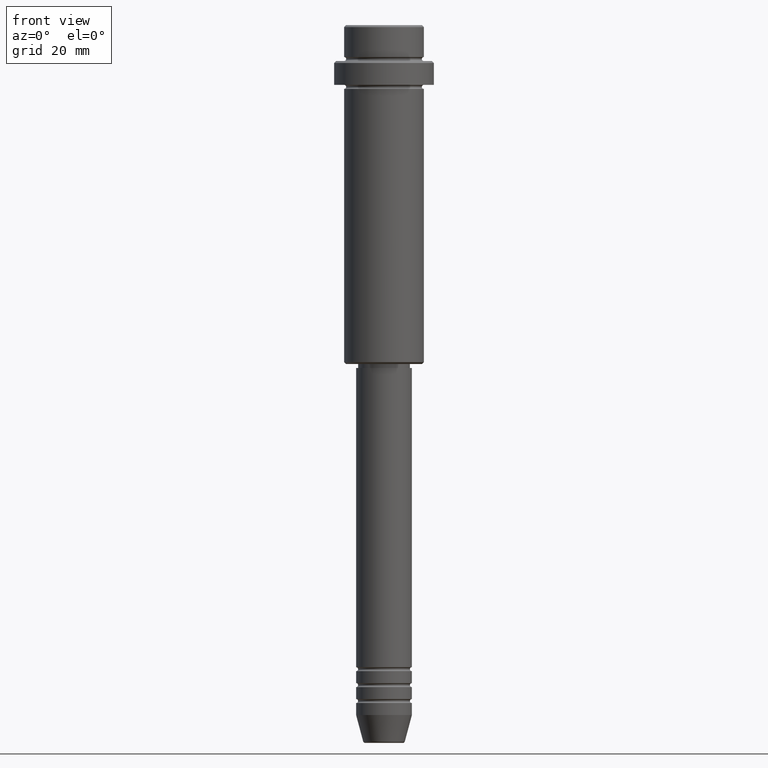
[diagram: clean part render]
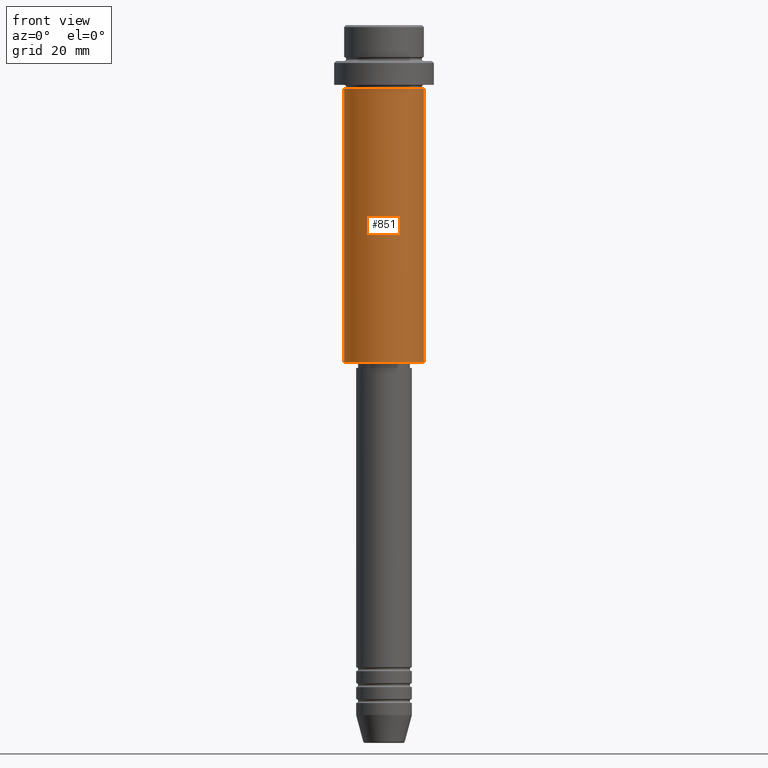
[diagram: same view with one face highlighted and labeled with its STEP entity id]
A machine part, front view. The second image highlights one B-rep face of the part: STEP entity #851.
In plain terms, the highlighted cylindrical surface (partial cylindrical patch) has radius 10 mm, axis along (-0, -0, 1).
Its self-contained STEP definition (entity closure, byte-faithful):
#5 = DIRECTION ( 'NONE',  ( 1.000000000000000000, 0.000000000000000000, 0.000000000000000000 ) ) ;
#67 = VERTEX_POINT ( 'NONE', #461 ) ;
#95 = EDGE_CURVE ( 'NONE', #330, #67, #245, .T. ) ;
#112 = CARTESIAN_POINT ( 'NONE',  ( 0.000000000000000000, 0.000000000000000000, 0.000000000000000000 ) ) ;
#120 = DIRECTION ( 'NONE',  ( -0.000000000000000000, -0.000000000000000000, 1.000000000000000000 ) ) ;
#140 = VERTEX_POINT ( 'NONE', #565 ) ;
#245 = LINE ( 'NONE', #580, #516 ) ;
#258 = FACE_OUTER_BOUND ( 'NONE', #1143, .T. ) ;
#279 = DIRECTION ( 'NONE',  ( -0.000000000000000000, -0.000000000000000000, 1.000000000000000000 ) ) ;
#330 = VERTEX_POINT ( 'NONE', #945 ) ;
#363 = VECTOR ( 'NONE', #1416, 1000.000000000000000 ) ;
#371 = DIRECTION ( 'NONE',  ( -0.000000000000000000, -0.000000000000000000, 1.000000000000000000 ) ) ;
#461 = CARTESIAN_POINT ( 'NONE',  ( -9.999999999999998224, 1.224646799147353059E-15, -16.00000000000000000 ) ) ;
#516 = VECTOR ( 'NONE', #371, 1000.000000000000000 ) ;
#541 = CARTESIAN_POINT ( 'NONE',  ( 0.000000000000000000, 0.000000000000000000, -84.49999999999998579 ) ) ;
#546 = CARTESIAN_POINT ( 'NONE',  ( 9.999999999999998224, 0.000000000000000000, 0.000000000000000000 ) ) ;
#558 = EDGE_CURVE ( 'NONE', #1150, #140, #665, .T. ) ;
#565 = CARTESIAN_POINT ( 'NONE',  ( 9.999999999999998224, 0.000000000000000000, -16.00000000000000000 ) ) ;
#580 = CARTESIAN_POINT ( 'NONE',  ( -9.999999999999998224, 1.224646799147353059E-15, 0.000000000000000000 ) ) ;
#653 = DIRECTION ( 'NONE',  ( -1.000000000000000000, 0.000000000000000000, 0.000000000000000000 ) ) ;
#654 = ORIENTED_EDGE ( 'NONE', *, *, #558, .T. ) ;
#665 = LINE ( 'NONE', #546, #363 ) ;
#771 = ORIENTED_EDGE ( 'NONE', *, *, #95, .F. ) ;
#832 = DIRECTION ( 'NONE',  ( 1.000000000000000000, 0.000000000000000000, 0.000000000000000000 ) ) ;
#851 = ADVANCED_FACE ( 'NONE', ( #258 ), #1333, .T. ) ;
#875 = DIRECTION ( 'NONE',  ( -0.000000000000000000, -0.000000000000000000, 1.000000000000000000 ) ) ;
#945 = CARTESIAN_POINT ( 'NONE',  ( -9.999999999999998224, 1.224646799147353059E-15, -84.49999999999998579 ) ) ;
#951 = AXIS2_PLACEMENT_3D ( 'NONE', #112, #875, #5 ) ;
#990 = EDGE_CURVE ( 'NONE', #67, #140, #1386, .T. ) ;
#1001 = AXIS2_PLACEMENT_3D ( 'NONE', #541, #120, #653 ) ;
#1011 = CARTESIAN_POINT ( 'NONE',  ( 0.000000000000000000, 0.000000000000000000, -16.00000000000000000 ) ) ;
#1102 = ORIENTED_EDGE ( 'NONE', *, *, #990, .F. ) ;
#1134 = AXIS2_PLACEMENT_3D ( 'NONE', #1011, #279, #832 ) ;
#1143 = EDGE_LOOP ( 'NONE', ( #771, #1245, #654, #1102 ) ) ;
#1150 = VERTEX_POINT ( 'NONE', #1283 ) ;
#1211 = CIRCLE ( 'NONE', #1001, 9.999999999999998224 ) ;
#1245 = ORIENTED_EDGE ( 'NONE', *, *, #1324, .T. ) ;
#1283 = CARTESIAN_POINT ( 'NONE',  ( 9.999999999999998224, 0.000000000000000000, -84.49999999999998579 ) ) ;
#1324 = EDGE_CURVE ( 'NONE', #330, #1150, #1211, .T. ) ;
#1333 = CYLINDRICAL_SURFACE ( 'NONE', #951, 9.999999999999998224 ) ;
#1386 = CIRCLE ( 'NONE', #1134, 9.999999999999998224 ) ;
#1416 = DIRECTION ( 'NONE',  ( -0.000000000000000000, -0.000000000000000000, 1.000000000000000000 ) ) ;